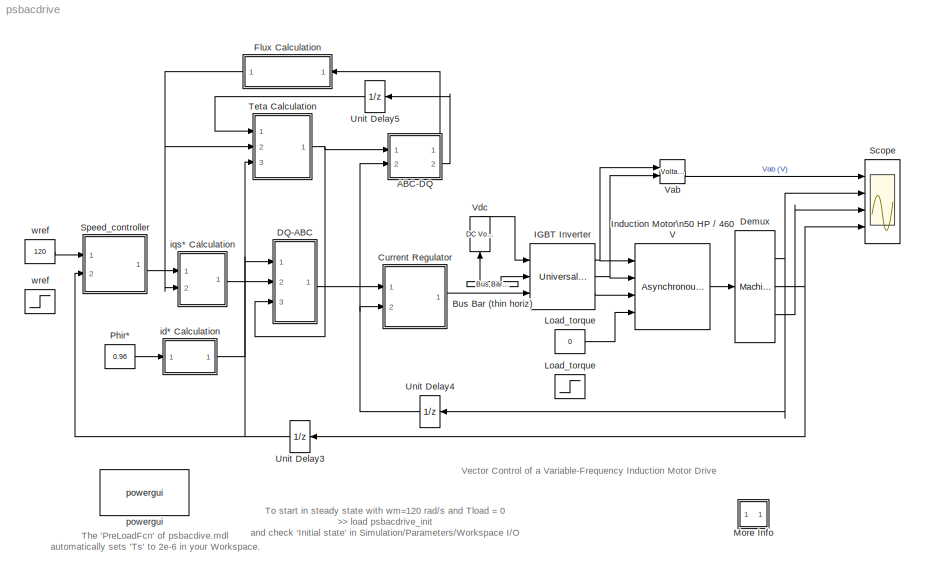
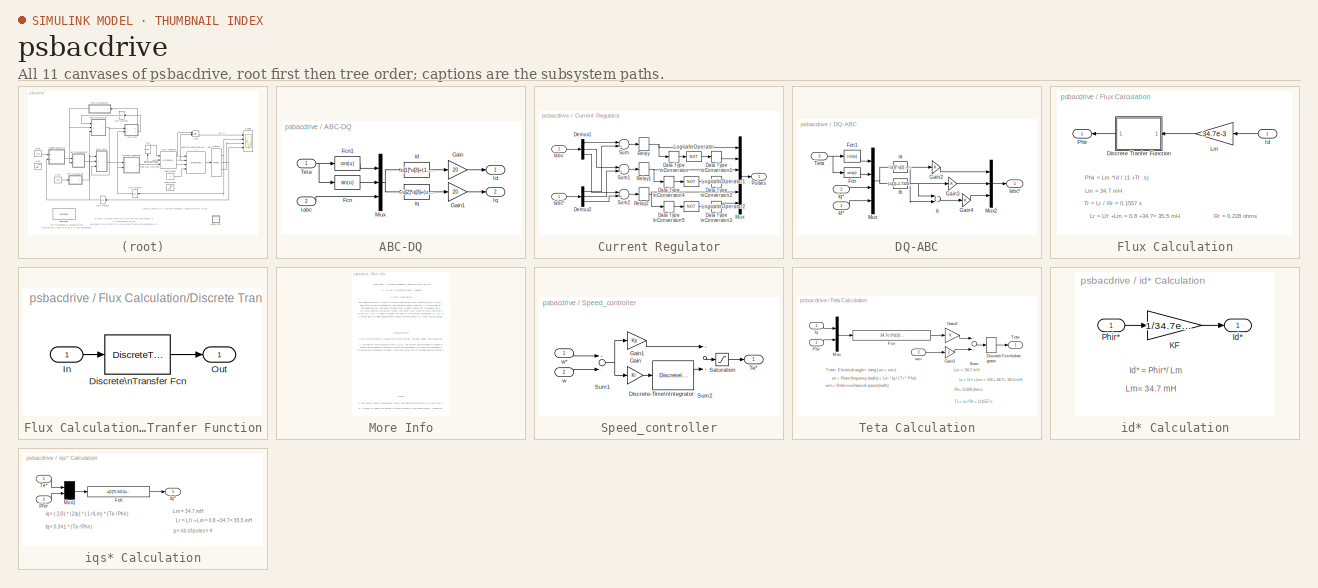
[diagram: thumbnail index - all 11 canvases of the model, root first then tree order]
MODEL psbacdrive
KIND model
CONFIG InitFcn = powericon('psbinitsys',bdroot);
CONFIG PreLoadFcn = assignin('base','Ts',[2e-6])
BLOCK [SubSystem] ABC-DQ
  MinAlgLoopOccurrences = off
  Ports = [2, 2]
  RTWSystemCode = Auto
  TreatAsAtomicUnit = off
BLOCK [Fcn] ABC-DQ/Fcn
  Expr = sin(u)
BLOCK [Fcn] ABC-DQ/Fcn1
  Expr = cos(u)
BLOCK [Gain] ABC-DQ/Gain
  Gain = 2/3
BLOCK [Gain] ABC-DQ/Gain1
  Gain = 2/3
BLOCK [Inport] ABC-DQ/Iabc
  IconDisplay = Port number
  LatchInput = off
  Port = 2
BLOCK [Outport] ABC-DQ/Id
  BusOutputAsStruct = off
  IconDisplay = Port number
  InitialOutput = 0
BLOCK [Outport] ABC-DQ/Iq
  BusOutputAsStruct = off
  IconDisplay = Port number
  InitialOutput = 0
  Port = 2
BLOCK [Mux] ABC-DQ/Mux
  Inputs = [1 1 3]
  Ports = [3, 1]
BLOCK [Inport] ABC-DQ/Teta
  IconDisplay = Port number
  LatchInput = off
  Port = 1
BLOCK [Fcn] ABC-DQ/id
  Expr = u[1]*u[3]+(1.7320508*u[2]-u[1])*u[4]*0.5+(-u[1]-1.7320508*u[2])*u[5]*0.5
BLOCK [Fcn] ABC-DQ/iq
  Expr = -u[2]*u[3]+(u[2]+1.7320508*u[1])*u[4]*0.5+(u[2]-1.7320508*u[1])*u[5]*0.5
BLOCK [Reference] Bus Bar (thin horiz)  REF=powerlib2/Connectors/Bus Bar (thin horiz)
  PSBOutputType = 111111111111111111111111111111111111111111111111111111111111111111111111111111111111
  Ports = [0, 2]
  SourceBlock = powerlib2/Connectors/Bus Bar (thin horiz)
  SourceType = Bus Bar
  Tag = PoWeRsYsTeMbLoCk
  input = 0
  output = 2
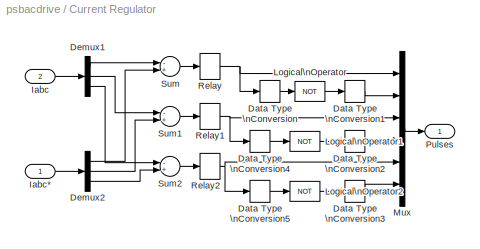
BLOCK [SubSystem] Current Regulator
  MaskEnableString = on
  MaskIconFrame = on
  MaskIconOpaque = off
  MaskIconRotate = none
  MaskIconUnits = autoscale
  MaskPromptString = Hysteresis band (A)
  MaskStyleString = edit
  MaskToolTipString = on
  MaskTunableValueString = on
  MaskType = Regulateur de courant a hysteresis
  MaskValueString = 20
  MaskVariables = h=@1;
  MaskVisibilityString = on
  MinAlgLoopOccurrences = off
  Ports = [2, 1]
  RTWSystemCode = Auto
  TreatAsAtomicUnit = off
BLOCK [DataTypeConversion] Current Regulator/Data Type \nConversion
  OutDataTypeMode = boolean
BLOCK [DataTypeConversion] Current Regulator/Data Type \nConversion1
  OutDataTypeMode = double
BLOCK [DataTypeConversion] Current Regulator/Data Type \nConversion2
  OutDataTypeMode = double
BLOCK [DataTypeConversion] Current Regulator/Data Type \nConversion3
  OutDataTypeMode = double
BLOCK [DataTypeConversion] Current Regulator/Data Type \nConversion4
  OutDataTypeMode = boolean
BLOCK [DataTypeConversion] Current Regulator/Data Type \nConversion5
  OutDataTypeMode = boolean
BLOCK [Demux] Current Regulator/Demux1
  Outputs = 3
  Ports = [1, 3]
BLOCK [Demux] Current Regulator/Demux2
  Outputs = 3
  Ports = [1, 3]
BLOCK [Inport] Current Regulator/Iabc
  IconDisplay = Port number
  LatchInput = off
  Port = 2
BLOCK [Inport] Current Regulator/Iabc*
  IconDisplay = Port number
  LatchInput = off
  Port = 1
BLOCK [Logic] Current Regulator/Logical\nOperator
  Operator = NOT
  Ports = [1, 1]
BLOCK [Logic] Current Regulator/Logical\nOperator1
  Operator = NOT
  Ports = [1, 1]
BLOCK [Logic] Current Regulator/Logical\nOperator2
  Operator = NOT
  Ports = [1, 1]
BLOCK [Mux] Current Regulator/Mux
  Inputs = 6
  Ports = [6, 1]
BLOCK [Outport] Current Regulator/Pulses
  BusOutputAsStruct = off
  IconDisplay = Port number
  InitialOutput = 0
BLOCK [Relay] Current Regulator/Relay
  OffSwitchValue = -h/2
  OnSwitchValue = h/2
BLOCK [Relay] Current Regulator/Relay1
  OffSwitchValue = -h/2
  OnSwitchValue = h/2
BLOCK [Relay] Current Regulator/Relay2
  OffSwitchValue = -h/2
  OnSwitchValue = h/2
BLOCK [Sum] Current Regulator/Sum
  Inputs = -+
  Ports = [2, 1]
BLOCK [Sum] Current Regulator/Sum1
  Inputs = -+
  Ports = [2, 1]
BLOCK [Sum] Current Regulator/Sum2
  Inputs = -+
  Ports = [2, 1]
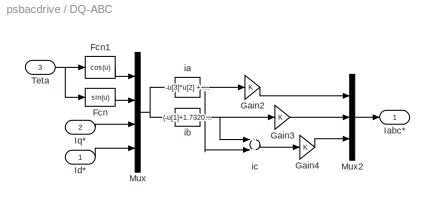
BLOCK [SubSystem] DQ-ABC
  MinAlgLoopOccurrences = off
  Ports = [3, 1]
  RTWSystemCode = Auto
  TreatAsAtomicUnit = off
BLOCK [Fcn] DQ-ABC/Fcn
  Expr = sin(u)
BLOCK [Fcn] DQ-ABC/Fcn1
  Expr = cos(u)
BLOCK [Gain] DQ-ABC/Gain2
BLOCK [Gain] DQ-ABC/Gain3
BLOCK [Gain] DQ-ABC/Gain4
BLOCK [Outport] DQ-ABC/Iabc*
  BusOutputAsStruct = off
  IconDisplay = Port number
  InitialOutput = 0
BLOCK [Inport] DQ-ABC/Id*
  IconDisplay = Port number
  LatchInput = off
  Port = 1
BLOCK [Inport] DQ-ABC/Iq*
  IconDisplay = Port number
  LatchInput = off
  Port = 2
BLOCK [Mux] DQ-ABC/Mux
  Ports = [4, 1]
BLOCK [Mux] DQ-ABC/Mux2
  Inputs = 3
  Ports = [3, 1]
BLOCK [Inport] DQ-ABC/Teta
  IconDisplay = Port number
  LatchInput = off
  Port = 3
BLOCK [Fcn] DQ-ABC/ia
  Expr = -u[3]*u[2] + u[4]*u[1]
BLOCK [Fcn] DQ-ABC/ib
  Expr = (-u[1]+1.7320508*u[2])*u[4]*0.5+(u[2]+1.7320508*u[1])*u[3]*0.5
BLOCK [Sum] DQ-ABC/ic
  Inputs = --
  Ports = [2, 1]
BLOCK [Reference] Demux  REF=powerlib2/Machines/Machines\nMeasurement\nDemux
  Ports = [1, 3]
  SourceBlock = powerlib2/Machines/Machines\nMeasurement\nDemux
  SourceType = Machine measurements
  asm1 = off
  asm10 = on
  asm11 = off
  asm2 = off
  asm3 = off
  asm4 = off
  asm5 = on
  asm6 = off
  asm7 = off
  asm8 = off
  asm9 = on
  lastType = 3
  machType = Asynchronous
  pmsm1 = on
  pmsm2 = on
  pmsm3 = on
  pmsm4 = on
  pmsm5 = on
  pmsm6 = on
  sm1 = on
  sm10 = on
  sm11 = on
  sm115 = off
  sm12 = off
  sm13 = off
  sm14 = off
  sm2 = on
  sm3 = on
  sm4 = on
  sm5 = on
  sm6 = on
  sm7 = on
  sm8 = on
  sm9 = on
  ssm1 = on
  ssm2 = on
  ssm3 = on
  ssm4 = on
  ssm5 = on
  ssm6 = on
BLOCK [SubSystem] Flux Calculation
  MaskDisplay = disp('Flux\\nCalc.')
  MaskIconFrame = on
  MaskIconOpaque = off
  MaskIconRotate = none
  MaskIconUnits = autoscale
  MaskInitialization = NF=0.44572610323020e-6;\nDF=[1 -0.99998715486734];
  MaskType = Flux Calcultation
  MinAlgLoopOccurrences = off
  Ports = [1, 1]
  RTWSystemCode = Auto
  TreatAsAtomicUnit = off
BLOCK [SubSystem] Flux Calculation/Discrete Tranfer Function
  MaskCallbackString = |
  MaskDescription = H(s)=1/(1+T.s)
  MaskDisplay = plot(X,Y);\ndisp(str);\n
  MaskEnableString = on,on
  MaskIconFrame = on
  MaskIconOpaque = on
  MaskIconRotate = none
  MaskIconUnits = autoscale
  MaskInitialization = X=[0 1 2 3 4];\n Y=[-2 -2 -3 -4 -4];\n str=sprintf('\\nH=1/(1+T.s)\\n T= %g s<path>',T);\nnum=1;\nden=[T 1];\n\n% discrete transfer function\n% descending powers of z\nnumd= Ts/T;\ndend=[ 1  (Ts-T)/T];\n\n
  MaskPromptString = Time constant T (s) :|Time step (s)
  MaskStyleString = edit,edit
  MaskTabNameString = ,
  MaskToolTipString = on,on
  MaskTunableValueString = on,on
  MaskType = First Order Low Pass Filter (Discrete)
  MaskValueString = 0.1557|2e-6
  MaskVarAliasString = ,
  MaskVariables = T=@1;Ts=@2;
  MaskVisibilityString = on,on
  MinAlgLoopOccurrences = off
  Ports = [1, 1]
  RTWSystemCode = Auto
  TreatAsAtomicUnit = off
BLOCK [DiscreteTransferFcn] Flux Calculation/Discrete Tranfer Function/Discrete\nTransfer Fcn
  Denominator = dend
  Numerator = numd
  SampleTime = Ts
BLOCK [Inport] Flux Calculation/Discrete Tranfer Function/In
  IconDisplay = Port number
  LatchInput = off
  Port = 1
BLOCK [Outport] Flux Calculation/Discrete Tranfer Function/Out
  BusOutputAsStruct = off
  IconDisplay = Port number
  InitialOutput = 0
BLOCK [Inport] Flux Calculation/Id
  IconDisplay = Port number
  LatchInput = off
  Port = 1
BLOCK [Gain] Flux Calculation/Lm
  Gain = 34.7e-3
BLOCK [Outport] Flux Calculation/Phir
  BusOutputAsStruct = off
  IconDisplay = Port number
BLOCK [Reference] IGBT Inverter  REF=powerlib2/Power\nElectronics/Universal Bridge
  Lon = 0
  PSBOutputType = 111
  Ports = [3, 3]
  Ron = 1e-3
  SourceBlock = powerlib2/Power\nElectronics/Universal Bridge
  SourceType = Universal Bridge
  Tag = PoWeRsYsTeMbLoCk
  VFs = [  0.8  0.8  ]
  Vf = .8
  arms = 3
  cf = inf
  confi = ABC as output terminals
  device = IGBT / Diodes
  gtoparameters = [ 1e-6 , 1e-6 ]
  igbtparameters = [ 1e-6 , 2e-6 ]
  injcc = 1000
  mesure = None
BLOCK [Reference] Induction Motor\n50 HP // 460 V  REF=powerlib2/Machines/Asynchronous Machine\nSI Units
  LoadFlowParameters = 0
  PSBOutputType = 1110
  Ports = [4, 1]
  SourceBlock = powerlib2/Machines/Asynchronous Machine\nSI Units
  SourceType = Asynchronous Machine
  Tag = PoWeRsYsTeMbLoCk
  ctrl = Stationary
  iounits = 1
  rotType = Squirrel-cage
  x1 = [ 50*746, 460, 60 ]
  x2 = [ 0.087 0.8e-3 ]
  x3 = [ 0.228  0.8e-3 ]
  x4 = 34.7e-3
  x5 = [1.662  0.1 2 ]
  x6 = [ 1, 0 ,  0 , 0 , 0 , 0 , 0 , 0 ]
BLOCK [Step] Load_torque
  After = 200
  SampleTime = 0
  Time = 2
BLOCK [Constant] Load_torque 
  Value = 0
BLOCK [SubSystem] More Info
  MaskDisplay = disp('?')
  MaskIconFrame = on
  MaskIconOpaque = on
  MaskIconRotate = none
  MaskIconUnits = autoscale
  MinAlgLoopOccurrences = off
  Ports = []
  RTWSystemCode = Auto
  TreatAsAtomicUnit = off
BLOCK [Constant] Phir*
  Value = 0.96
BLOCK [Scope] Scope
  DataFormat = StructureWithTime
  Decimation = 20
  LimitDataPoints = off
  NumInputPorts = 4
  Ports = [4]
  SampleTime = 5e-6
  TimeRange = 0.03
  YMax = 1000~500~400~6
  YMin = -1000~-500~0~0
  ZoomMode = yonly
BLOCK [SubSystem] Speed_controller
  MaskCallbackString = |||
  MaskDescription = Proportional-Integral Speed Controller
  MaskDisplay = plot(0,0,100,100,[35,35,65],[70,30,30],[35,65],[45,60])
  MaskEnableString = on,on,on,on
  MaskIconFrame = on
  MaskIconOpaque = off
  MaskIconRotate = none
  MaskIconUnits = autoscale
  MaskPromptString = Proportional gain (Kp)|Integral gain (Ki)|Torque limit (N.m)|Sampling time (s)
  MaskStyleString = edit,edit,edit,edit
  MaskTabNameString = ,,,
  MaskToolTipString = on,on,on,on
  MaskTunableValueString = on,on,on,on
  MaskType = PI controller
  MaskValueString = 13|26|300|2e-6
  MaskVarAliasString = ,,,
  MaskVariables = Kp=@1;Ki=@2;Tlim=@3;Ts=@4;
  MaskVisibilityString = on,on,on,on
  MinAlgLoopOccurrences = off
  Ports = [2, 1]
  RTWSystemCode = Auto
  TreatAsAtomicUnit = off
BLOCK [DiscreteIntegrator] Speed_controller/Discrete-Time\nIntegrator
  ExternalReset = none
  ICPrevOutput = DiscIntNeverNeededParam
  ICPrevScaledInput = DiscIntNeverNeededParam
  InitialConditionSource = internal
  IntegratorMethod = Integration: Trapezoidal
  LimitOutput = on
  LowerSaturationLimit = -Tlim
  Ports = [1, 1]
  SampleTime = Ts
  UpperSaturationLimit = Tlim
BLOCK [Gain] Speed_controller/Gain
  Gain = Ki
BLOCK [Gain] Speed_controller/Gain1
  Gain = Kp
BLOCK [Saturate] Speed_controller/Saturation
  LowerLimit = -Tlim
  UpperLimit = Tlim
BLOCK [Sum] Speed_controller/Sum1
  Inputs = +-
  Ports = [2, 1]
BLOCK [Sum] Speed_controller/Sum2
  Ports = [2, 1]
BLOCK [Outport] Speed_controller/Te*
  BusOutputAsStruct = off
  IconDisplay = Port number
  InitialOutput = 0
BLOCK [Inport] Speed_controller/w
  IconDisplay = Port number
  LatchInput = off
  Port = 2
BLOCK [Inport] Speed_controller/w*
  IconDisplay = Port number
  LatchInput = off
  Port = 1
BLOCK [SubSystem] Teta Calculation
  MinAlgLoopOccurrences = off
  Ports = [3, 1]
  RTWSystemCode = Auto
  TreatAsAtomicUnit = off
BLOCK [DiscreteIntegrator] Teta Calculation/Discrete-Time\nIntegrator
  ExternalReset = none
  ICPrevOutput = DiscIntNeverNeededParam
  ICPrevScaledInput = DiscIntNeverNeededParam
  InitialConditionSource = internal
  IntegratorMethod = Integration: Forward Euler
  Ports = [1, 1]
  SampleTime = Ts
BLOCK [Fcn] Teta Calculation/Fcn
  Expr = 34.7e-3*u[1]/(u[2]*0.1557+1e-3)
BLOCK [Gain] Teta Calculation/Gain2
BLOCK [Gain] Teta Calculation/Gain3
  Gain = 2
BLOCK [Inport] Teta Calculation/Iq
  IconDisplay = Port number
  LatchInput = off
  Port = 1
BLOCK [Mux] Teta Calculation/Mux
  Inputs = 2
  Ports = [2, 1]
BLOCK [Inport] Teta Calculation/Phir
  IconDisplay = Port number
  LatchInput = off
  Port = 2
BLOCK [Sum] Teta Calculation/Sum
  Ports = [2, 1]
BLOCK [Outport] Teta Calculation/Teta
  BusOutputAsStruct = off
  IconDisplay = Port number
  InitialOutput = 0
BLOCK [Inport] Teta Calculation/wm
  IconDisplay = Port number
  LatchInput = off
  Port = 3
BLOCK [UnitDelay] Unit Delay3
  SampleTime = Ts
BLOCK [UnitDelay] Unit Delay4
  SampleTime = Ts
BLOCK [UnitDelay] Unit Delay5
  SampleTime = Ts
BLOCK [Reference] Vab  REF=powerlib2/Measurements/Voltage Measurement
  OutputType = Magnitude
  PSBOutputType = 0
  PSBequivalent = 0
  PhasorSimulation = off
  Ports = [2, 1]
  SourceBlock = powerlib2/Measurements/Voltage Measurement
  SourceType = Voltage Measurement
  Tag = PoWeRsYsTeMmEaSuReMeNt
BLOCK [Reference] Vdc  REF=powerlib2/Electrical\nSources/DC Voltage Source
  Description = source block
  PSBOutputType = 1
  Ports = [1, 1]
  SourceBlock = powerlib2/Electrical\nSources/DC Voltage Source
  SourceType = DC Voltage Source
  Tag = PoWeRsYsTeMbLoCk
  V = 780
  mesure = None
BLOCK [SubSystem] id* Calculation
  MinAlgLoopOccurrences = off
  Ports = [1, 1]
  RTWSystemCode = Auto
  TreatAsAtomicUnit = off
BLOCK [Outport] id* Calculation/Id*
  BusOutputAsStruct = off
  IconDisplay = Port number
BLOCK [Gain] id* Calculation/KF
  Gain = 1/34.7e-3
BLOCK [Inport] id* Calculation/Phir*
  IconDisplay = Port number
  LatchInput = off
  Port = 1
BLOCK [SubSystem] iqs* Calculation
  MinAlgLoopOccurrences = off
  Ports = [2, 1]
  RTWSystemCode = Auto
  TreatAsAtomicUnit = off
BLOCK [Fcn] iqs* Calculation/Fcn
  Expr = u[1]*0.341/(u[2]+1e-3)
BLOCK [Outport] iqs* Calculation/Iq*
  BusOutputAsStruct = off
  IconDisplay = Port number
  InitialOutput = 0
BLOCK [Mux] iqs* Calculation/Mux1
  Inputs = 2
  Ports = [2, 1]
BLOCK [Inport] iqs* Calculation/Phir
  IconDisplay = Port number
  LatchInput = off
  Port = 2
BLOCK [Inport] iqs* Calculation/Te*
  IconDisplay = Port number
  LatchInput = off
  Port = 1
BLOCK [Reference] powergui  REF=powerlib2/powergui
  DisplayStyle = off
  Frange = [0:2:500]
  FreqAxis = off
  MaxFrequency = 1000
  Ports = []
  RmsSteady = 1
  SourceBlock = powerlib2/powergui
  SourceType = PSB option menu block
  StartTime = 0.0
  Ts = 2e-6
  Xlog = on
  Ylog = off
  ZoomFFT = on
  cycles = 1
  display = off
  echomessages = off
  frequency = 60
  frequencyindice = 1
  frequencyindicesteady = 1
  fundamental = 60
  methode = off
  save = off
  variable = ZData
BLOCK [Step] wref
  After = 160
  Before = 120
  SampleTime = 0
  Time = 0.4
BLOCK [Constant] wref 
  Value = 120
ANNOTATION (root): The 'PreLoadFcn' of psbacdive.mdl\nautomatically sets 'Ts' to 2e-6 in your Workspace.
ANNOTATION (root): To start in steady state with wm=120 rad/s and Tload = 0\n>> load psbacdrive_init\nand check 'Initial state' in Simulation/Parameters/Workspace I/O
ANNOTATION (root): Vector Control of a Variable-Frequency Induction Motor Drive
ANNOTATION Flux Calculation: Lm = 34.7 mH
ANNOTATION Flux Calculation: Lr = Ll'r +Lm = 0.8 +34.7= 35.5 mH
ANNOTATION Flux Calculation: Phir = Lm *Id / (1 +Tr .s)
ANNOTATION Flux Calculation: Rr = 0.228 ohms
ANNOTATION Flux Calculation: Tr = Lr / Rr = 0.1557 s
ANNOTATION More Info: 1) The system (control and power sytem) has been discretized with a 2 us time step.
ANNOTATION More Info: 2) In order to reduce the number of points stored in the scope memory, a decimation factor of 20 is used.
ANNOTATION More Info: Case study : Variable-Frequency Induction Motor Drive
ANNOTATION More Info: Circuit Description
ANNOTATION More Info: Demonstration
ANNOTATION More Info: H. Le-Huy (Universite Laval, Quebec)
ANNOTATION More Info: Notes
ANNOTATION More Info: Start the simulation. Observe the motor current, voltage, speed, and torque during the starting on the scope.\n\nAt the end of the simulation time (1.5 s), the system has attained its steady-state. The final state \nvector can be saved by previously selecting 'Workspace I/O/Save to workspace/Final state' in \nSimulation/Parameters window. Once the simultion is finished save the xFinal variable int...<+625ch>
ANNOTATION More Info: The induction motor is fed by a current-controlled PWM inverter which is built using a Universal Bridge block. \nThe motor drives a mechanical load characterized by inertia J, friction coeficient B, and load torque TL . \nThe speed control loop uses a proportional-integral controller to produce the quadrature-axis current reference \niq* which controls the motor torque. The motor flux is controlle...<+349ch>
ANNOTATION Teta Calculation: Teta= Electrical angle= integ ( wr + wm)
ANNOTATION Teta Calculation: Lm = 34.7 mH
ANNOTATION Teta Calculation: Lr = Ll'r +Lm = 0.8 +34.7= 35.5 mH
ANNOTATION Teta Calculation: Rr= 0.228 ohms
ANNOTATION Teta Calculation: Tr = Lr / Rr = 0.1557 s
ANNOTATION Teta Calculation: wm= Rotor mechanical speed (rad/s)
ANNOTATION Teta Calculation: wr = Rotor frequency (rad/s) = Lm *Iq / ( Tr * Phir)
ANNOTATION id* Calculation: Id* = Phir*/ Lm
ANNOTATION id* Calculation: Lm= 34.7 mH
ANNOTATION iqs* Calculation: Iq= ( 2/3) * (2/p) * ( Lr/Lm) * (Te / Phir)
ANNOTATION iqs* Calculation: Iq= 0.341 * (Te / Phir)
ANNOTATION iqs* Calculation: Lm = 34.7 mH
ANNOTATION iqs* Calculation: Lr = Ll'r +Lm = 0.8 +34.7= 35.5 mH
ANNOTATION iqs* Calculation: p= nb of poles = 4
LINE ABC-DQ/Fcn1:1 -> ABC-DQ/Mux:1
LINE ABC-DQ/Fcn:1 -> ABC-DQ/Mux:2
LINE ABC-DQ/Gain1:1 -> ABC-DQ/Iq:1
LINE ABC-DQ/Gain:1 -> ABC-DQ/Id:1
LINE ABC-DQ/Iabc:1 -> ABC-DQ/Mux:3
NET ABC-DQ/Mux:1 -> ABC-DQ/id:1, ABC-DQ/iq:1
NET ABC-DQ/Teta:1 -> ABC-DQ/Fcn1:1, ABC-DQ/Fcn:1
LINE ABC-DQ/id:1 -> ABC-DQ/Gain:1
LINE ABC-DQ/iq:1 -> ABC-DQ/Gain1:1
LINE ABC-DQ:1 -> Flux Calculation:1
LINE ABC-DQ:2 -> Unit Delay5:1
LINE Bus Bar (thin horiz):1 -> Vdc:1
LINE Bus Bar (thin horiz):2 -> IGBT Inverter:2
LINE Current Regulator/Data Type \nConversion1:1 -> Current Regulator/Mux:2
LINE Current Regulator/Data Type \nConversion2:1 -> Current Regulator/Mux:4
LINE Current Regulator/Data Type \nConversion3:1 -> Current Regulator/Mux:6
LINE Current Regulator/Data Type \nConversion4:1 -> Current Regulator/Logical\nOperator1:1
LINE Current Regulator/Data Type \nConversion5:1 -> Current Regulator/Logical\nOperator2:1
LINE Current Regulator/Data Type \nConversion:1 -> Current Regulator/Logical\nOperator:1
LINE Current Regulator/Demux1:1 -> Current Regulator/Sum:1
LINE Current Regulator/Demux1:2 -> Current Regulator/Sum1:1
LINE Current Regulator/Demux1:3 -> Current Regulator/Sum2:1
LINE Current Regulator/Demux2:1 -> Current Regulator/Sum:2
LINE Current Regulator/Demux2:2 -> Current Regulator/Sum1:2
LINE Current Regulator/Demux2:3 -> Current Regulator/Sum2:2
LINE Current Regulator/Iabc*:1 -> Current Regulator/Demux2:1
LINE Current Regulator/Iabc:1 -> Current Regulator/Demux1:1
LINE Current Regulator/Logical\nOperator1:1 -> Current Regulator/Data Type \nConversion2:1
LINE Current Regulator/Logical\nOperator2:1 -> Current Regulator/Data Type \nConversion3:1
LINE Current Regulator/Logical\nOperator:1 -> Current Regulator/Data Type \nConversion1:1
LINE Current Regulator/Mux:1 -> Current Regulator/Pulses:1
NET Current Regulator/Relay1:1 -> Current Regulator/Data Type \nConversion4:1, Current Regulator/Mux:3
NET Current Regulator/Relay2:1 -> Current Regulator/Data Type \nConversion5:1, Current Regulator/Mux:5
NET Current Regulator/Relay:1 -> Current Regulator/Data Type \nConversion:1, Current Regulator/Mux:1
LINE Current Regulator/Sum1:1 -> Current Regulator/Relay1:1
LINE Current Regulator/Sum2:1 -> Current Regulator/Relay2:1
LINE Current Regulator/Sum:1 -> Current Regulator/Relay:1
LINE Current Regulator:1 -> IGBT Inverter:3
LINE DQ-ABC/Fcn1:1 -> DQ-ABC/Mux:1
LINE DQ-ABC/Fcn:1 -> DQ-ABC/Mux:2
LINE DQ-ABC/Gain2:1 -> DQ-ABC/Mux2:1
LINE DQ-ABC/Gain3:1 -> DQ-ABC/Mux2:2
LINE DQ-ABC/Gain4:1 -> DQ-ABC/Mux2:3
LINE DQ-ABC/Id*:1 -> DQ-ABC/Mux:4
LINE DQ-ABC/Iq*:1 -> DQ-ABC/Mux:3
LINE DQ-ABC/Mux2:1 -> DQ-ABC/Iabc*:1
NET DQ-ABC/Mux:1 -> DQ-ABC/ia:1, DQ-ABC/ib:1
NET DQ-ABC/Teta:1 -> DQ-ABC/Fcn1:1, DQ-ABC/Fcn:1
NET DQ-ABC/ia:1 -> DQ-ABC/Gain2:1, DQ-ABC/ic:2
NET DQ-ABC/ib:1 -> DQ-ABC/Gain3:1, DQ-ABC/ic:1
LINE DQ-ABC/ic:1 -> DQ-ABC/Gain4:1
LINE DQ-ABC:1 -> Current Regulator:1
NET Demux:1 -> Scope:2, Unit Delay4:1
NET Demux:2 -> Scope:4, Unit Delay3:1
LINE Demux:3 -> Scope:3
LINE Flux Calculation/Discrete Tranfer Function/Discrete\nTransfer Fcn:1 -> Flux Calculation/Discrete Tranfer Function/Out:1
LINE Flux Calculation/Discrete Tranfer Function/In:1 -> Flux Calculation/Discrete Tranfer Function/Discrete\nTransfer Fcn:1
LINE Flux Calculation/Discrete Tranfer Function:1 -> Flux Calculation/Phir:1
LINE Flux Calculation/Id:1 -> Flux Calculation/Lm:1
LINE Flux Calculation/Lm:1 -> Flux Calculation/Discrete Tranfer Function:1
NET Flux Calculation:1 -> Teta Calculation:2, iqs* Calculation:2
NET IGBT Inverter:1 -> Induction Motor\n50 HP // 460 V:1, Vab:1
NET IGBT Inverter:2 -> Induction Motor\n50 HP // 460 V:2, Vab:2
LINE IGBT Inverter:3 -> Induction Motor\n50 HP // 460 V:3
LINE Induction Motor\n50 HP // 460 V:1 -> Demux:1
LINE Load_torque :1 -> Induction Motor\n50 HP // 460 V:4
LINE Phir*:1 -> id* Calculation:1
LINE Speed_controller/Discrete-Time\nIntegrator:1 -> Speed_controller/Sum2:2
LINE Speed_controller/Gain1:1 -> Speed_controller/Sum2:1
LINE Speed_controller/Gain:1 -> Speed_controller/Discrete-Time\nIntegrator:1
LINE Speed_controller/Saturation:1 -> Speed_controller/Te*:1
NET Speed_controller/Sum1:1 -> Speed_controller/Gain1:1, Speed_controller/Gain:1
LINE Speed_controller/Sum2:1 -> Speed_controller/Saturation:1
LINE Speed_controller/w*:1 -> Speed_controller/Sum1:1
LINE Speed_controller/w:1 -> Speed_controller/Sum1:2
LINE Speed_controller:1 -> iqs* Calculation:1
LINE Teta Calculation/Discrete-Time\nIntegrator:1 -> Teta Calculation/Teta:1
LINE Teta Calculation/Fcn:1 -> Teta Calculation/Gain2:1
LINE Teta Calculation/Gain2:1 -> Teta Calculation/Sum:1
LINE Teta Calculation/Gain3:1 -> Teta Calculation/Sum:2
LINE Teta Calculation/Iq:1 -> Teta Calculation/Mux:1
LINE Teta Calculation/Mux:1 -> Teta Calculation/Fcn:1
LINE Teta Calculation/Phir:1 -> Teta Calculation/Mux:2
LINE Teta Calculation/Sum:1 -> Teta Calculation/Discrete-Time\nIntegrator:1
LINE Teta Calculation/wm:1 -> Teta Calculation/Gain3:1
NET Teta Calculation:1 -> ABC-DQ:1, DQ-ABC:3
NET Unit Delay3:1 -> Speed_controller:2, Teta Calculation:3
NET Unit Delay4:1 -> ABC-DQ:2, Current Regulator:2
LINE Unit Delay5:1 -> Teta Calculation:1
LINE Vab:1 -> Scope:1
LINE Vdc:1 -> IGBT Inverter:1
LINE id* Calculation/KF:1 -> id* Calculation/Id*:1
LINE id* Calculation/Phir*:1 -> id* Calculation/KF:1
LINE id* Calculation:1 -> DQ-ABC:1
LINE iqs* Calculation/Fcn:1 -> iqs* Calculation/Iq*:1
LINE iqs* Calculation/Mux1:1 -> iqs* Calculation/Fcn:1
LINE iqs* Calculation/Phir:1 -> iqs* Calculation/Mux1:2
LINE iqs* Calculation/Te*:1 -> iqs* Calculation/Mux1:1
LINE iqs* Calculation:1 -> DQ-ABC:2
LINE wref :1 -> Speed_controller:1
note: NET lines group one-source signal fan-out (src -> all destinations, sorted); 1:1 wires keep LINE
note: 1 file-system path scrubbed to <path> (not preserved elsewhere — flat text is the only slx artifact)
